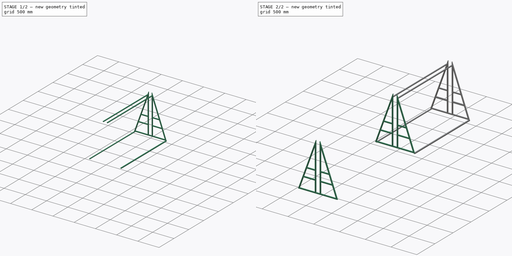
[diagram: build sequence overview — one tinted view per stage of 2, left to right]
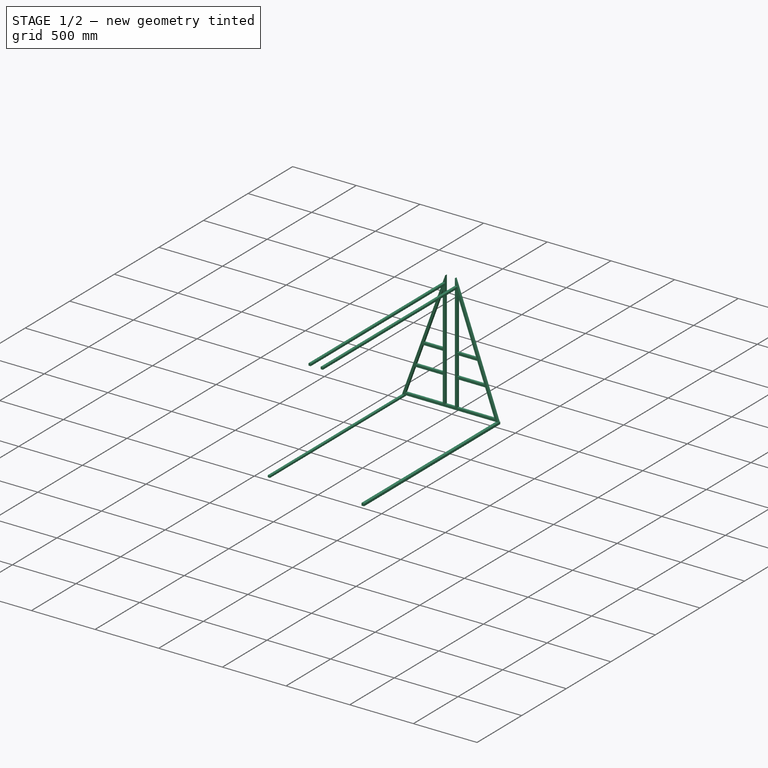
[diagram: stage 1 of 2 — iso view after this stage's code; geometry added in this stage tinted green]
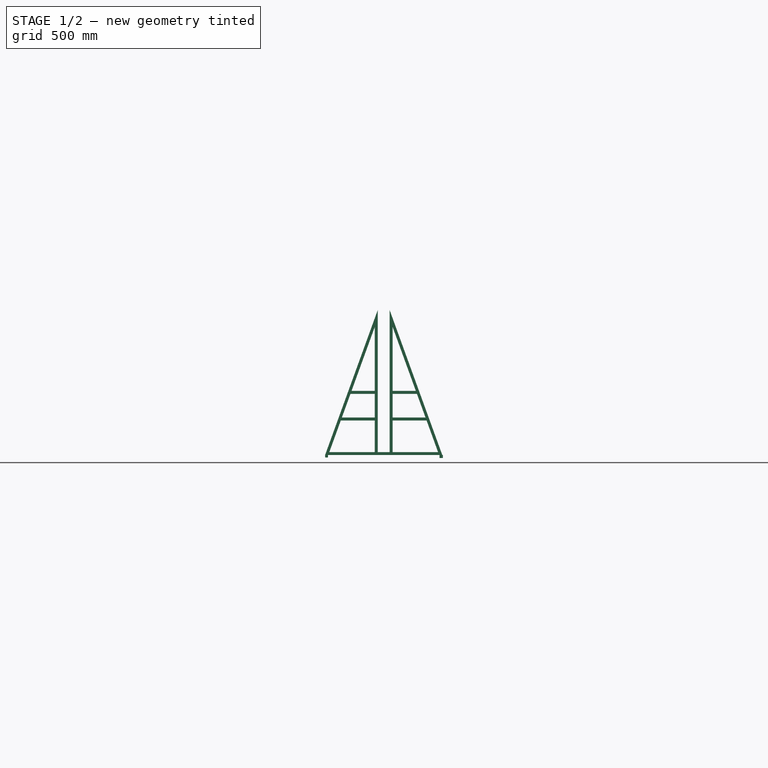
[diagram: stage 1 of 2 — front view after this stage's code; geometry added in this stage tinted green]
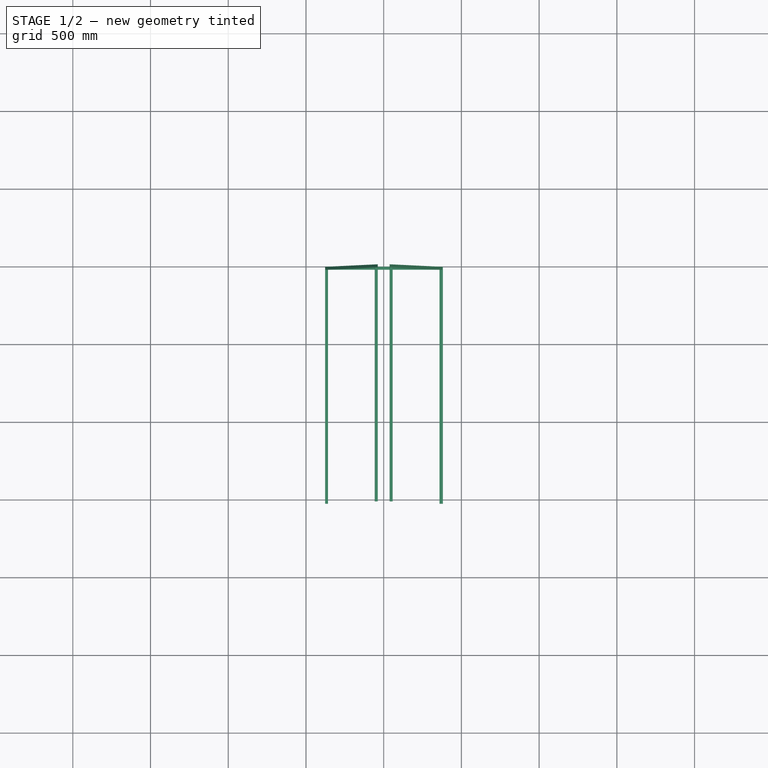
[diagram: stage 1 of 2 — top view after this stage's code; geometry added in this stage tinted green]
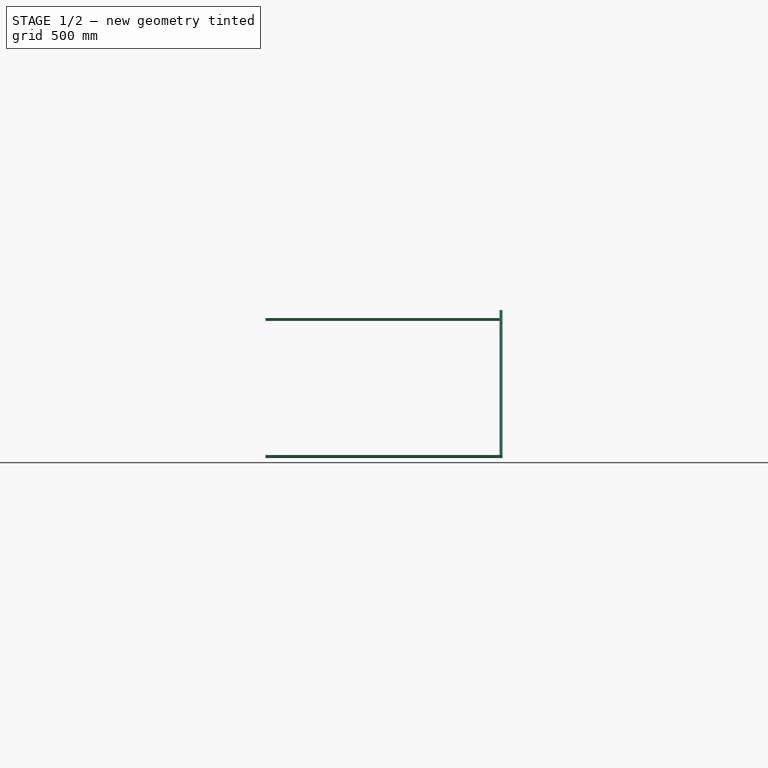
[diagram: stage 1 of 2 — right view after this stage's code; geometry added in this stage tinted green]
FCSTD DOCUMENT  (FreeCAD 0.20R29410 (Git))
Label: rollerrack
License: All rights reserved
LicenseURL: http://en.wikipedia.org/wiki/All_rights_reserved
objects: Sketcher::SketchObject×4, PartDesign::Pad×4, PartDesign::Body×1
note: 13 computed .brp shape members not serialized (recipe doc carries the construction recipe); baked Part::Feature solids carry a one-line shape summary decoded from their .brp

FEATURE [Sketcher::SketchObject] Sketch
  FullyConstrained = true
  MapMode = 5
  Placement = pos=(0,0,0) rot=(1,0,0;1.5708rad)
  Support = -> [XZ_Plane]
  sketch-geometry (31):
    g0: LineSegment StartX=-377.031 StartY=0 StartZ=0 EndX=377.031 EndY=0 EndZ=0
    g1: LineSegment StartX=377.031 StartY=0 StartZ=0 EndX=38.1 EndY=933.45 EndZ=0
    g2: LineSegment StartX=38.1 StartY=933.45 StartZ=0 EndX=38.1 EndY=19.05 EndZ=0
    g3: LineSegment StartX=38.1 StartY=19.05 StartZ=0 EndX=-38.1 EndY=19.05 EndZ=0
    g4: LineSegment StartX=-38.1 StartY=19.05 StartZ=0 EndX=-38.1 EndY=933.45 EndZ=0
    g5: LineSegment StartX=-38.1 StartY=933.45 StartZ=0 EndX=-377.031 EndY=0 EndZ=0
    g6: LineSegment StartX=-276.066 StartY=222.25 StartZ=0 EndX=-57.15 EndY=222.25 EndZ=0
    g7: LineSegment StartX=-57.15 StartY=222.25 StartZ=0 EndX=-57.15 EndY=19.05 EndZ=0
    g8: LineSegment StartX=-57.15 StartY=19.05 StartZ=0 EndX=-349.847 EndY=19.05 EndZ=0
    g9: LineSegment StartX=-349.847 StartY=19.05 StartZ=0 EndX=-276.066 EndY=222.25 EndZ=0
    g10: LineSegment StartX=-269.149 StartY=241.3 StartZ=0 EndX=-213.814 EndY=393.7 EndZ=0
    g11: LineSegment StartX=-213.814 StartY=393.7 StartZ=0 EndX=-57.15 EndY=393.7 EndZ=0
    g12: LineSegment StartX=-57.15 StartY=393.7 StartZ=0 EndX=-57.15 EndY=241.3 EndZ=0
    g13: LineSegment StartX=-57.15 StartY=241.3 StartZ=0 EndX=-269.149 EndY=241.3 EndZ=0
    g14: LineSegment StartX=-206.897 StartY=412.75 StartZ=0 EndX=-57.15 EndY=825.167 EndZ=0
    g15: LineSegment StartX=-57.15 StartY=825.167 StartZ=0 EndX=-57.15 EndY=412.75 EndZ=0
    g16: LineSegment StartX=-57.15 StartY=412.75 StartZ=0 EndX=-206.897 EndY=412.75 EndZ=0
    g17: LineSegment StartX=57.15 StartY=19.05 StartZ=0 EndX=349.847 EndY=19.05 EndZ=0
    g18: LineSegment StartX=349.847 StartY=19.05 StartZ=0 EndX=276.066 EndY=222.25 EndZ=0
    g19: LineSegment StartX=276.066 StartY=222.25 StartZ=0 EndX=57.15 EndY=222.25 EndZ=0
    g20: LineSegment StartX=57.15 StartY=222.25 StartZ=0 EndX=57.15 EndY=19.05 EndZ=0
    g21: LineSegment StartX=57.15 StartY=241.3 StartZ=0 EndX=269.149 EndY=241.3 EndZ=0
    g22: LineSegment StartX=269.149 StartY=241.3 StartZ=0 EndX=213.814 EndY=393.7 EndZ=0
    g23: LineSegment StartX=213.814 StartY=393.7 StartZ=0 EndX=57.15 EndY=393.7 EndZ=0
    g24: LineSegment StartX=57.15 StartY=393.7 StartZ=0 EndX=57.15 EndY=241.3 EndZ=0
    g25: LineSegment StartX=57.15 StartY=412.75 StartZ=0 EndX=206.897 EndY=412.75 EndZ=0
    g26: LineSegment StartX=206.897 StartY=412.75 StartZ=0 EndX=57.15 EndY=825.167 EndZ=0
    g27: LineSegment StartX=57.15 StartY=825.167 StartZ=0 EndX=57.15 EndY=412.75 EndZ=0
    g28: LineSegment StartX=57.15 StartY=825.167 StartZ=0 EndX=57.15 EndY=844.217 EndZ=0
    g29: GeomPoint X=-70.4999 Y=844.217 Z=0
    g30: GeomPoint X=-370.114 Y=19.05 Z=0
  constraints (97):
    c: PointOnObject(g0,g-1)
    c: Coincident(g0,g1)
    c: Coincident(g1,g2)
    c: Vertical(g2)
    c: Coincident(g2,g3)
    c: Horizontal(g3)
    c: Coincident(g3,g4)
    c: Vertical(g4)
    c: Coincident(g4,g5)
    c: Coincident(g5,g0)
    c: Coincident(g6,g7)
    c: Vertical(g7)
    c: Coincident(g7,g8)
    c: Horizontal(g8)
    c: Coincident(g8,g9)
    c: Coincident(g9,g6)
    c: Coincident(g10,g11)
    c: Coincident(g11,g12)
    c: Vertical(g12)
    c: Coincident(g12,g13)
    c: Coincident(g13,g10)
    c: Coincident(g14,g15)
    c: Coincident(g15,g16)
    c: Coincident(g16,g14)
    c: Horizontal(g16)
    c: Horizontal(g17)
    c: Coincident(g17,g18)
    c: Coincident(g18,g19)
    c: Coincident(g19,g20)
    c: Coincident(g20,g17)
    c: Coincident(g21,g22)
    c: Coincident(g22,g23)
    c: Horizontal(g23)
    c: Coincident(g23,g24)
    c: Coincident(g24,g21)
    c: Coincident(g25,g26)
    c: Coincident(g26,g27)
    c: Coincident(g27,g25)
    c: Equal(g5,g1)
    c: Equal(g4,g2)
    c: Parallel(g14,g5)
    c: Parallel(g10,g5)
    c: Parallel(g9,g5)
    c: Parallel(g18,g22)
    c: Parallel(g22,g26)
    c: Parallel(g26,g1)
    c: Vertical(g27)
    c: Vertical(g24)
    c: Vertical(g20)
    c: Distance(g25,g2) = 19.05
    c: DistanceX(g3,g3) = 76.2
    c: Distance(g21,g2) = 19.05
    c: Distance(g19,g2) = 19.05
    c: Horizontal(g19)
    c: Horizontal(g21)
    c: Horizontal(g25)
    c: Distance(g8,g0) = 19.05
    c: Distance(g6,g5) = 19.05
    c: Distance(g10,g5) = 19.05
    c: Distance(g14,g5) = 19.05
    c: Distance(g14,g11) = 19.05
    c: Distance(g10,g6) = 19.05
    c: Horizontal(g11)
    c: Distance(g15,g4) = 19.05
    c: Vertical(g15)
    c: Distance(g11,g4) = 19.05
    c: Horizontal(g6)
    c: Distance(g6,g4) = 19.05
    c: Distance(g3,g0) = 19.05
    c: Distance(g17,g0) = 19.05
    c: Distance(g18,g1) = 19.05
    c: Distance(g21,g1) = 19.05
    c: Distance(g25,g1) = 19.05
    c: Distance(g25,g23) = 19.05
    c: Distance(g21,g19) = 19.05
    c: Horizontal(g13)
    c: DistanceX(g0,g0) = 754.062  'base'
    c: DistanceY(g4,g4) = 914.4
    c: DistanceY(g7,g7) = 203.2
    c: DistanceY(g20,g20) = 203.2
    c: DistanceY(g12,g12) = 152.4
    c: DistanceY(g24,g24) = 152.4
    c: Symmetric(g0,g0,g-2)
    c: Angle(g8,g9) = 1.2225
    c: Angle(g14,g15) = 0.348293
    c: DistanceX(g10,g11) = 156.664
    c: DistanceX(g6,g6) = 218.916
    c: Coincident(g28,g26)
    c: Vertical(g28)
    c: DistanceY(g28,g28) = 19.05
    c: PointOnObject(g29,g5)
    c: Horizontal(g29,g28)
    c: DistanceY(g17,g28) = 825.167
    c: PointOnObject(g30,g5)
    c: Horizontal(g30,g8)
    c: DistanceY(g30,g29) = 825.167
    c: Distance(g29,g30) = 877.878
FEATURE [PartDesign::Pad] Pad
  Direction = (0,-1,-2e-16)
  Length = 19.05
  Length2 = 10
  Placement = pos=(0,0,0) rot=(1,0,0;1.5708rad)
  Profile = -> Sketch
  ReferenceAxis = -> Sketch [N_Axis]
  Refine = true
  Type = 0
FEATURE [Sketcher::SketchObject] Sketch003
  ExternalGeometry = -> [Pad,Sketch]
  FullyConstrained = false
  MapMode = 5
  Placement = pos=(0,0,0) rot=(1,0,0;1.5708rad)
  Support = -> [XZ_Plane]
  sketch-geometry (34):
    g0: LineSegment StartX=-377.031 StartY=0 StartZ=0 EndX=-358.381 EndY=0 EndZ=0
    g1: LineSegment StartX=-358.381 StartY=0 StartZ=0 EndX=-358.381 EndY=-12.5543 EndZ=0
    g2: LineSegment StartX=-361.429 StartY=-15.6023 StartZ=0 EndX=-373.983 EndY=-15.6023 EndZ=0
    g3: LineSegment StartX=-377.031 StartY=-12.5543 StartZ=0 EndX=-377.031 EndY=0 EndZ=0
    g4: ArcOfCircle CenterX=-361.429 CenterY=-12.5543 CenterZ=0 NormalX=0 NormalY=0 NormalZ=1 AngleXU=0 Radius=3.048 StartAngle=4.71239 EndAngle=6.28319
    g5: ArcOfCircle CenterX=-373.983 CenterY=-12.5543 CenterZ=0 NormalX=0 NormalY=0 NormalZ=1 AngleXU=0 Radius=3.048 StartAngle=3.14159 EndAngle=4.71239
    g6: LineSegment StartX=381 StartY=0 StartZ=0 EndX=358.823 EndY=0 EndZ=0
    g7: LineSegment StartX=358.823 StartY=0 StartZ=0 EndX=358.823 EndY=-16.0809 EndZ=0
    g8: LineSegment StartX=361.871 StartY=-19.1289 StartZ=0 EndX=377.952 EndY=-19.1289 EndZ=0
    g9: LineSegment StartX=381 StartY=-16.0809 StartZ=0 EndX=381 EndY=0 EndZ=0
    g10: ArcOfCircle CenterX=361.871 CenterY=-16.0809 CenterZ=0 NormalX=0 NormalY=0 NormalZ=1 AngleXU=0 Radius=3.048 StartAngle=3.14159 EndAngle=4.71239
    g11: ArcOfCircle CenterX=377.952 CenterY=-16.0809 CenterZ=0 NormalX=0 NormalY=0 NormalZ=1 AngleXU=0 Radius=3.048 StartAngle=4.71239 EndAngle=6.28319
    g12: LineSegment StartX=54.2504 StartY=882.129 StartZ=0 EndX=41.2964 EndY=882.129 EndZ=0
    g13: LineSegment StartX=38.2484 StartY=879.081 StartZ=0 EndX=38.2484 EndY=866.127 EndZ=0
    g14: LineSegment StartX=41.2964 StartY=863.079 StartZ=0 EndX=54.2504 EndY=863.079 EndZ=0
    g15: LineSegment StartX=57.2984 StartY=866.127 StartZ=0 EndX=57.2984 EndY=879.081 EndZ=0
    g16: ArcOfCircle CenterX=54.2504 CenterY=879.081 CenterZ=0 NormalX=0 NormalY=0 NormalZ=1 AngleXU=0 Radius=3.048 StartAngle=-1.07e-14 EndAngle=1.5708
    g17: ArcOfCircle CenterX=41.2964 CenterY=879.081 CenterZ=0 NormalX=0 NormalY=0 NormalZ=1 AngleXU=0 Radius=3.048 StartAngle=1.5708 EndAngle=3.14159
    g18: GeomPoint X=38.2484 Y=882.129 Z=0
    g19: ArcOfCircle CenterX=41.2964 CenterY=866.127 CenterZ=0 NormalX=0 NormalY=0 NormalZ=1 AngleXU=0 Radius=3.048 StartAngle=3.14159 EndAngle=4.71239
    g20: GeomPoint X=38.2484 Y=863.079 Z=0
    g21: ArcOfCircle CenterX=54.2504 CenterY=866.127 CenterZ=0 NormalX=0 NormalY=0 NormalZ=1 AngleXU=0 Radius=3.048 StartAngle=4.71239 EndAngle=6.28319
    g22: GeomPoint X=57.2984 Y=863.079 Z=0
    g23: LineSegment StartX=-54.2504 StartY=882.129 StartZ=0 EndX=-41.2964 EndY=882.129 EndZ=0
    g24: LineSegment StartX=-38.2484 StartY=879.081 StartZ=0 EndX=-38.2484 EndY=866.127 EndZ=0
    g25: LineSegment StartX=-41.2964 StartY=863.079 StartZ=0 EndX=-54.2504 EndY=863.079 EndZ=0
    g26: LineSegment StartX=-57.2984 StartY=866.127 StartZ=0 EndX=-57.2984 EndY=879.081 EndZ=0
    g27: ArcOfCircle CenterX=-54.2504 CenterY=879.081 CenterZ=0 NormalX=0 NormalY=0 NormalZ=1 AngleXU=0 Radius=3.048 StartAngle=1.5708 EndAngle=3.14159
    g28: ArcOfCircle CenterX=-41.2964 CenterY=879.081 CenterZ=0 NormalX=0 NormalY=0 NormalZ=1 AngleXU=0 Radius=3.048 StartAngle=0 EndAngle=1.5708
    g29: GeomPoint X=-38.2484 Y=882.129 Z=0
    g30: ArcOfCircle CenterX=-41.2964 CenterY=866.127 CenterZ=0 NormalX=0 NormalY=0 NormalZ=1 AngleXU=0 Radius=3.048 StartAngle=4.71239 EndAngle=6.28319
    g31: GeomPoint X=-38.2484 Y=863.079 Z=0
    g32: ArcOfCircle CenterX=-54.2504 CenterY=866.127 CenterZ=0 NormalX=0 NormalY=0 NormalZ=1 AngleXU=0 Radius=3.048 StartAngle=3.14159 EndAngle=4.71239
    g33: GeomPoint X=-57.2984 Y=863.079 Z=0
  constraints (73):
    c: Coincident(g0,g1)
    c: Coincident(g3,g0)
    c: Horizontal(g0)
    c: Horizontal(g2)
    c: Vertical(g1)
    c: Vertical(g3)
    c: Equal(g1,g2)
    c: Coincident(g0,g-3)
    c: Tangent(g2,g4) = 1.5708
    c: Tangent(g1,g4) = 1.5708
    c: Tangent(g2,g5) = 1.5708
    c: Tangent(g3,g5) = 1.5708
    c: Radius(g4) = 3.048
    c: Radius(g5) = 3.048
    c: Coincident(g6,g7)
    c: Coincident(g9,g6)
    c: Horizontal(g6)
    c: Horizontal(g8)
    c: Vertical(g7)
    c: Vertical(g9)
    c: Equal(g7,g8)
    c: Tangent(g8,g10) = -1.5708
    c: Tangent(g7,g10) = -1.5708
    c: Tangent(g8,g11) = -1.5708
    c: Tangent(g9,g11) = -1.5708
    c: Radius(g10) = 3.048
    c: Radius(g11) = 3.048
    c: Horizontal(g12)
    c: Horizontal(g14)
    c: Vertical(g13)
    c: Vertical(g15)
    c: Tangent(g15,g16) = -1.5708
    c: Tangent(g12,g16) = -1.5708
    c: PointOnObject(g18,g12)
    c: PointOnObject(g18,g13)
    c: Tangent(g12,g17) = -1.5708
    c: Tangent(g13,g17) = -1.5708
    c: PointOnObject(g20,g13)
    c: PointOnObject(g20,g14)
    c: Tangent(g13,g19) = -1.5708
    c: Tangent(g14,g19) = -1.5708
    c: PointOnObject(g22,g15)
    c: PointOnObject(g22,g14)
    c: Tangent(g15,g21) = -1.5708
    c: Tangent(g14,g21) = -1.5708
    c: Equal(g21,g16)
    c: Equal(g21,g17)
    c: Equal(g21,g19)
    c: Radius(g21) = 3.048
    c: Distance(g18,g20) = 19.05
    c: Horizontal(g23)
    c: Horizontal(g25)
    c: Vertical(g24)
    c: Vertical(g26)
    c: Tangent(g26,g27) = 1.5708
    c: Tangent(g23,g27) = 1.5708
    c: PointOnObject(g29,g23)
    c: PointOnObject(g29,g24)
    c: Tangent(g23,g28) = 1.5708
    c: Tangent(g24,g28) = 1.5708
    c: PointOnObject(g31,g24)
    c: PointOnObject(g31,g25)
    c: Tangent(g24,g30) = 1.5708
    c: Tangent(g25,g30) = 1.5708
    c: PointOnObject(g33,g26)
    c: PointOnObject(g33,g25)
    c: Tangent(g26,g32) = 1.5708
    c: Tangent(g25,g32) = 1.5708
    c: Equal(g32,g27)
    c: Equal(g32,g28)
    c: Equal(g32,g30)
    c: Radius(g32) = 3.048
    c: Distance(g29,g31) = 19.05
FEATURE [PartDesign::Pad] Pad003
  BaseFeature = -> Pad
  Direction = (0,-1,-2e-16)
  Length = 1524
  Length2 = 10
  Placement = pos=(0,0,0) rot=(1,0,0;1.5708rad)
  Profile = -> Sketch003
  ReferenceAxis = -> Sketch003 [N_Axis]
  Refine = true
  Type = 0
FEATURE [PartDesign::Body] Body
  Group = -> [Sketch,Pad,Sketch003,Pad003]
  Origin = -> Origin
  Tip = -> Pad003
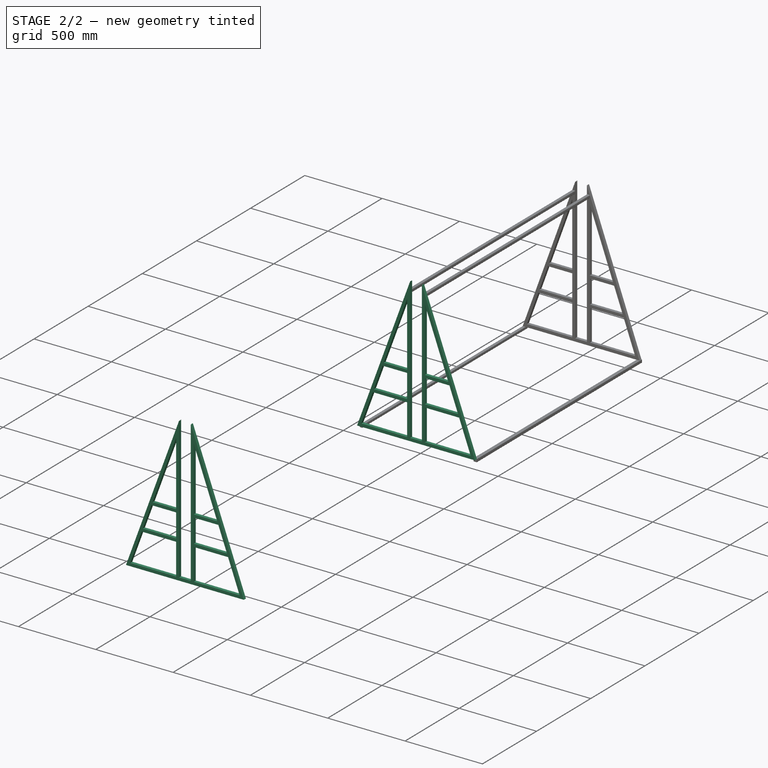
[diagram: stage 2 of 2 — iso view after this stage's code; geometry added in this stage tinted green]
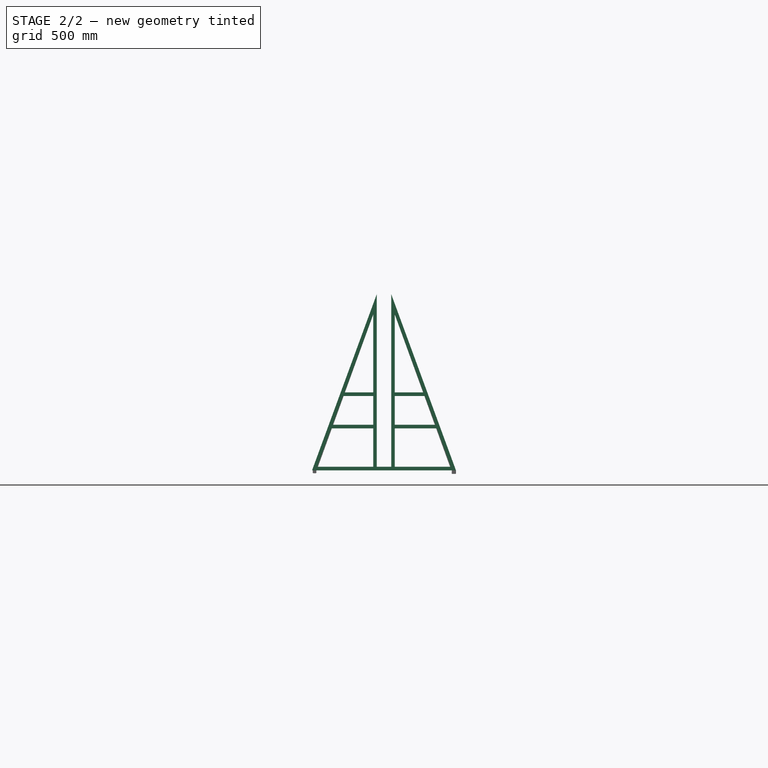
[diagram: stage 2 of 2 — front view after this stage's code; geometry added in this stage tinted green]
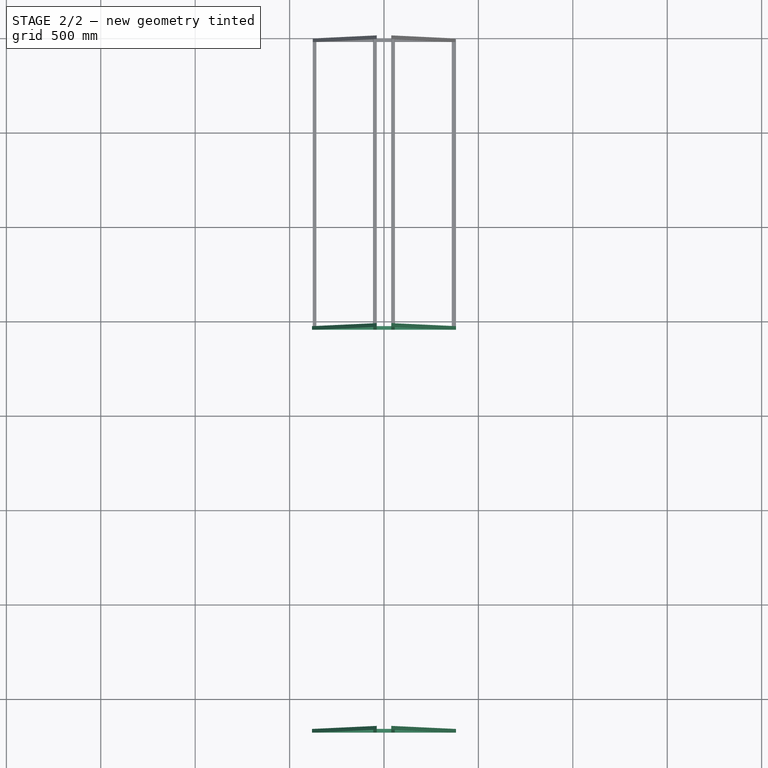
[diagram: stage 2 of 2 — top view after this stage's code; geometry added in this stage tinted green]
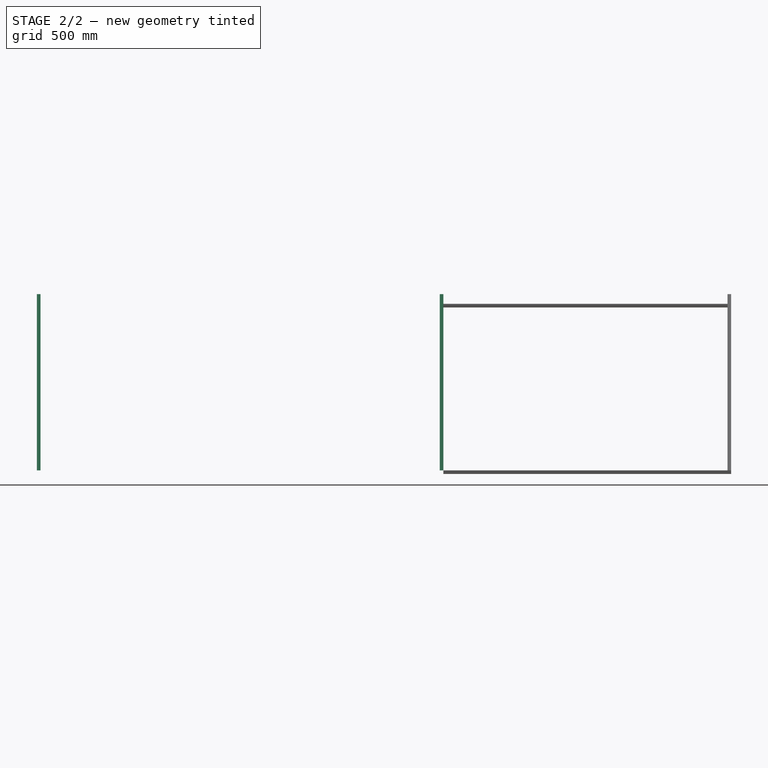
[diagram: stage 2 of 2 — right view after this stage's code; geometry added in this stage tinted green]
FEATURE [Sketcher::SketchObject] Sketch001
  AttachmentOffset = pos=(0,0,1524) rot=(0,0,1;0rad)
  FullyConstrained = true
  MapMode = 5
  Placement = pos=(0,-1524,-3.384e-13) rot=(1,0,0;1.5708rad)
  Support = -> [XZ_Plane001]
  sketch-geometry (28):
    g0: LineSegment StartX=-381 StartY=0 StartZ=0 EndX=381 EndY=0 EndZ=0
    g1: LineSegment StartX=381 StartY=0 StartZ=0 EndX=38.1 EndY=933.45 EndZ=0
    g2: LineSegment StartX=38.1 StartY=933.45 StartZ=0 EndX=38.1 EndY=19.05 EndZ=0
    g3: LineSegment StartX=38.1 StartY=19.05 StartZ=0 EndX=-38.1 EndY=19.05 EndZ=0
    g4: LineSegment StartX=-38.1 StartY=19.05 StartZ=0 EndX=-38.1 EndY=933.45 EndZ=0
    g5: LineSegment StartX=-38.1 StartY=933.45 StartZ=0 EndX=-381 EndY=0 EndZ=0
    g6: LineSegment StartX=-279.062 StartY=222.25 StartZ=0 EndX=-57.15 EndY=222.25 EndZ=0
    g7: LineSegment StartX=-57.15 StartY=222.25 StartZ=0 EndX=-57.15 EndY=19.05 EndZ=0
    g8: LineSegment StartX=-57.15 StartY=19.05 StartZ=0 EndX=-353.707 EndY=19.05 EndZ=0
    g9: LineSegment StartX=-353.707 StartY=19.05 StartZ=0 EndX=-279.062 EndY=222.25 EndZ=0
    g10: LineSegment StartX=-272.065 StartY=241.3 StartZ=0 EndX=-216.081 EndY=393.7 EndZ=0
    g11: LineSegment StartX=-216.081 StartY=393.7 StartZ=0 EndX=-57.15 EndY=393.7 EndZ=0
    g12: LineSegment StartX=-57.15 StartY=393.7 StartZ=0 EndX=-57.15 EndY=241.3 EndZ=0
    g13: LineSegment StartX=-57.15 StartY=241.3 StartZ=0 EndX=-272.065 EndY=241.3 EndZ=0
    g14: LineSegment StartX=-209.083 StartY=412.75 StartZ=0 EndX=-57.15 EndY=826.345 EndZ=0
    g15: LineSegment StartX=-57.15 StartY=826.345 StartZ=0 EndX=-57.15 EndY=412.75 EndZ=0
    g16: LineSegment StartX=-57.15 StartY=412.75 StartZ=0 EndX=-209.083 EndY=412.75 EndZ=0
    g17: LineSegment StartX=57.15 StartY=19.05 StartZ=0 EndX=353.707 EndY=19.05 EndZ=0
    g18: LineSegment StartX=353.707 StartY=19.05 StartZ=0 EndX=279.062 EndY=222.25 EndZ=0
    g19: LineSegment StartX=279.062 StartY=222.25 StartZ=0 EndX=57.15 EndY=222.25 EndZ=0
    g20: LineSegment StartX=57.15 StartY=222.25 StartZ=0 EndX=57.15 EndY=19.05 EndZ=0
    g21: LineSegment StartX=57.15 StartY=241.3 StartZ=0 EndX=272.065 EndY=241.3 EndZ=0
    g22: LineSegment StartX=272.065 StartY=241.3 StartZ=0 EndX=216.081 EndY=393.7 EndZ=0
    g23: LineSegment StartX=216.081 StartY=393.7 StartZ=0 EndX=57.15 EndY=393.7 EndZ=0
    g24: LineSegment StartX=57.15 StartY=393.7 StartZ=0 EndX=57.15 EndY=241.3 EndZ=0
    g25: LineSegment StartX=57.15 StartY=412.75 StartZ=0 EndX=209.083 EndY=412.75 EndZ=0
    g26: LineSegment StartX=209.083 StartY=412.75 StartZ=0 EndX=57.15 EndY=826.345 EndZ=0
    g27: LineSegment StartX=57.15 StartY=826.345 StartZ=0 EndX=57.15 EndY=412.75 EndZ=0
  constraints (83):
    c: PointOnObject(g0,g-1)
    c: Coincident(g0,g1)
    c: Coincident(g1,g2)
    c: Vertical(g2)
    c: Coincident(g2,g3)
    c: Horizontal(g3)
    c: Coincident(g3,g4)
    c: Vertical(g4)
    c: Coincident(g4,g5)
    c: Coincident(g5,g0)
    c: Coincident(g6,g7)
    c: Vertical(g7)
    c: Coincident(g7,g8)
    c: Horizontal(g8)
    c: Coincident(g8,g9)
    c: Coincident(g9,g6)
    c: Coincident(g10,g11)
    c: Coincident(g11,g12)
    c: Vertical(g12)
    c: Coincident(g12,g13)
    c: Coincident(g13,g10)
    c: Coincident(g14,g15)
    c: Coincident(g15,g16)
    c: Coincident(g16,g14)
    c: Horizontal(g16)
    c: Horizontal(g17)
    c: Coincident(g17,g18)
    c: Coincident(g18,g19)
    c: Coincident(g19,g20)
    c: Coincident(g20,g17)
    c: Coincident(g21,g22)
    c: Coincident(g22,g23)
    c: Horizontal(g23)
    c: Coincident(g23,g24)
    c: Coincident(g24,g21)
    c: Coincident(g25,g26)
    c: Coincident(g26,g27)
    c: Coincident(g27,g25)
    c: Equal(g5,g1)
    c: Equal(g4,g2)
    c: Parallel(g14,g5)
    c: Parallel(g10,g5)
    c: Parallel(g9,g5)
    c: Parallel(g18,g22)
    c: Parallel(g22,g26)
    c: Parallel(g26,g1)
    c: Vertical(g27)
    c: Vertical(g24)
    c: Vertical(g20)
    c: Distance(g25,g2) = 19.05
    c: DistanceX(g3,g3) = 76.2
    c: Distance(g21,g2) = 19.05
    c: Distance(g19,g2) = 19.05
    c: Horizontal(g19)
    c: Horizontal(g21)
    c: Horizontal(g25)
    c: Distance(g8,g0) = 19.05
    c: Distance(g6,g5) = 19.05
    c: Distance(g10,g5) = 19.05
    c: Distance(g14,g5) = 19.05
    c: Distance(g14,g11) = 19.05
    c: Distance(g10,g6) = 19.05
    c: Horizontal(g11)
    c: Distance(g15,g4) = 19.05
    c: Vertical(g15)
    c: Distance(g11,g4) = 19.05
    c: Horizontal(g6)
    c: Distance(g6,g4) = 19.05
    c: Distance(g3,g0) = 19.05
    c: Distance(g17,g0) = 19.05
    c: Distance(g18,g1) = 19.05
    c: Distance(g21,g1) = 19.05
    c: Distance(g25,g1) = 19.05
    c: Distance(g25,g23) = 19.05
    c: Distance(g21,g19) = 19.05
    c: Horizontal(g13)
    c: DistanceX(g0,g0) = 762
    c: DistanceY(g4,g4) = 914.4
    c: DistanceY(g7,g7) = 203.2
    c: DistanceY(g20,g20) = 203.2
    c: DistanceY(g12,g12) = 152.4
    c: DistanceY(g24,g24) = 152.4
    c: Symmetric(g0,g0,g-2)
FEATURE [PartDesign::Pad] Pad001
  Direction = (0,-1,-2e-16)
  Length = 19.05
  Length2 = 10
  Placement = pos=(0,0,0) rot=(1,0,0;1.5708rad)
  Profile = -> Sketch001
  ReferenceAxis = -> Sketch001 [N_Axis]
  Refine = true
  Type = 0
FEATURE [Sketcher::SketchObject] Sketch002
  AttachmentOffset = pos=(0,0,3657.6) rot=(0,0,1;0rad)
  FullyConstrained = true
  MapMode = 5
  Placement = pos=(0,-3657.6,-8.122e-13) rot=(1,0,0;1.5708rad)
  Support = -> [XZ_Plane002]
  expr: .AttachmentOffset.Base.z = 72 * 2in
  sketch-geometry (28):
    g0: LineSegment StartX=-381 StartY=0 StartZ=0 EndX=381 EndY=0 EndZ=0
    g1: LineSegment StartX=381 StartY=0 StartZ=0 EndX=38.1 EndY=933.45 EndZ=0
    g2: LineSegment StartX=38.1 StartY=933.45 StartZ=0 EndX=38.1 EndY=19.05 EndZ=0
    g3: LineSegment StartX=38.1 StartY=19.05 StartZ=0 EndX=-38.1 EndY=19.05 EndZ=0
    g4: LineSegment StartX=-38.1 StartY=19.05 StartZ=0 EndX=-38.1 EndY=933.45 EndZ=0
    g5: LineSegment StartX=-38.1 StartY=933.45 StartZ=0 EndX=-381 EndY=0 EndZ=0
    g6: LineSegment StartX=-279.062 StartY=222.25 StartZ=0 EndX=-57.15 EndY=222.25 EndZ=0
    g7: LineSegment StartX=-57.15 StartY=222.25 StartZ=0 EndX=-57.15 EndY=19.05 EndZ=0
    g8: LineSegment StartX=-57.15 StartY=19.05 StartZ=0 EndX=-353.707 EndY=19.05 EndZ=0
    g9: LineSegment StartX=-353.707 StartY=19.05 StartZ=0 EndX=-279.062 EndY=222.25 EndZ=0
    g10: LineSegment StartX=-272.065 StartY=241.3 StartZ=0 EndX=-216.081 EndY=393.7 EndZ=0
    g11: LineSegment StartX=-216.081 StartY=393.7 StartZ=0 EndX=-57.15 EndY=393.7 EndZ=0
    g12: LineSegment StartX=-57.15 StartY=393.7 StartZ=0 EndX=-57.15 EndY=241.3 EndZ=0
    g13: LineSegment StartX=-57.15 StartY=241.3 StartZ=0 EndX=-272.065 EndY=241.3 EndZ=0
    g14: LineSegment StartX=-209.083 StartY=412.75 StartZ=0 EndX=-57.15 EndY=826.345 EndZ=0
    g15: LineSegment StartX=-57.15 StartY=826.345 StartZ=0 EndX=-57.15 EndY=412.75 EndZ=0
    g16: LineSegment StartX=-57.15 StartY=412.75 StartZ=0 EndX=-209.083 EndY=412.75 EndZ=0
    g17: LineSegment StartX=57.15 StartY=19.05 StartZ=0 EndX=353.707 EndY=19.05 EndZ=0
    g18: LineSegment StartX=353.707 StartY=19.05 StartZ=0 EndX=279.062 EndY=222.25 EndZ=0
    g19: LineSegment StartX=279.062 StartY=222.25 StartZ=0 EndX=57.15 EndY=222.25 EndZ=0
    g20: LineSegment StartX=57.15 StartY=222.25 StartZ=0 EndX=57.15 EndY=19.05 EndZ=0
    g21: LineSegment StartX=57.15 StartY=241.3 StartZ=0 EndX=272.065 EndY=241.3 EndZ=0
    g22: LineSegment StartX=272.065 StartY=241.3 StartZ=0 EndX=216.081 EndY=393.7 EndZ=0
    g23: LineSegment StartX=216.081 StartY=393.7 StartZ=0 EndX=57.15 EndY=393.7 EndZ=0
    g24: LineSegment StartX=57.15 StartY=393.7 StartZ=0 EndX=57.15 EndY=241.3 EndZ=0
    g25: LineSegment StartX=57.15 StartY=412.75 StartZ=0 EndX=209.083 EndY=412.75 EndZ=0
    g26: LineSegment StartX=209.083 StartY=412.75 StartZ=0 EndX=57.15 EndY=826.345 EndZ=0
    g27: LineSegment StartX=57.15 StartY=826.345 StartZ=0 EndX=57.15 EndY=412.75 EndZ=0
  constraints (83):
    c: PointOnObject(g0,g-1)
    c: Coincident(g0,g1)
    c: Coincident(g1,g2)
    c: Vertical(g2)
    c: Coincident(g2,g3)
    c: Horizontal(g3)
    c: Coincident(g3,g4)
    c: Vertical(g4)
    c: Coincident(g4,g5)
    c: Coincident(g5,g0)
    c: Coincident(g6,g7)
    c: Vertical(g7)
    c: Coincident(g7,g8)
    c: Horizontal(g8)
    c: Coincident(g8,g9)
    c: Coincident(g9,g6)
    c: Coincident(g10,g11)
    c: Coincident(g11,g12)
    c: Vertical(g12)
    c: Coincident(g12,g13)
    c: Coincident(g13,g10)
    c: Coincident(g14,g15)
    c: Coincident(g15,g16)
    c: Coincident(g16,g14)
    c: Horizontal(g16)
    c: Horizontal(g17)
    c: Coincident(g17,g18)
    c: Coincident(g18,g19)
    c: Coincident(g19,g20)
    c: Coincident(g20,g17)
    c: Coincident(g21,g22)
    c: Coincident(g22,g23)
    c: Horizontal(g23)
    c: Coincident(g23,g24)
    c: Coincident(g24,g21)
    c: Coincident(g25,g26)
    c: Coincident(g26,g27)
    c: Coincident(g27,g25)
    c: Equal(g5,g1)
    c: Equal(g4,g2)
    c: Parallel(g14,g5)
    c: Parallel(g10,g5)
    c: Parallel(g9,g5)
    c: Parallel(g18,g22)
    c: Parallel(g22,g26)
    c: Parallel(g26,g1)
    c: Vertical(g27)
    c: Vertical(g24)
    c: Vertical(g20)
    c: Distance(g25,g2) = 19.05
    c: DistanceX(g3,g3) = 76.2
    c: Distance(g21,g2) = 19.05
    c: Distance(g19,g2) = 19.05
    c: Horizontal(g19)
    c: Horizontal(g21)
    c: Horizontal(g25)
    c: Distance(g8,g0) = 19.05
    c: Distance(g6,g5) = 19.05
    c: Distance(g10,g5) = 19.05
    c: Distance(g14,g5) = 19.05
    c: Distance(g14,g11) = 19.05
    c: Distance(g10,g6) = 19.05
    c: Horizontal(g11)
    c: Distance(g15,g4) = 19.05
    c: Vertical(g15)
    c: Distance(g11,g4) = 19.05
    c: Horizontal(g6)
    c: Distance(g6,g4) = 19.05
    c: Distance(g3,g0) = 19.05
    c: Distance(g17,g0) = 19.05
    c: Distance(g18,g1) = 19.05
    c: Distance(g21,g1) = 19.05
    c: Distance(g25,g1) = 19.05
    c: Distance(g25,g23) = 19.05
    c: Distance(g21,g19) = 19.05
    c: Horizontal(g13)
    c: DistanceX(g0,g0) = 762
    c: DistanceY(g4,g4) = 914.4
    c: DistanceY(g7,g7) = 203.2
    c: DistanceY(g20,g20) = 203.2
    c: DistanceY(g12,g12) = 152.4
    c: DistanceY(g24,g24) = 152.4
    c: Symmetric(g0,g0,g-2)
FEATURE [PartDesign::Pad] Pad002
  Direction = (0,-1,-2e-16)
  Length = 19.05
  Length2 = 10
  Placement = pos=(0,0,0) rot=(1,0,0;1.5708rad)
  Profile = -> Sketch002
  ReferenceAxis = -> Sketch002 [N_Axis]
  Refine = true
  Type = 0
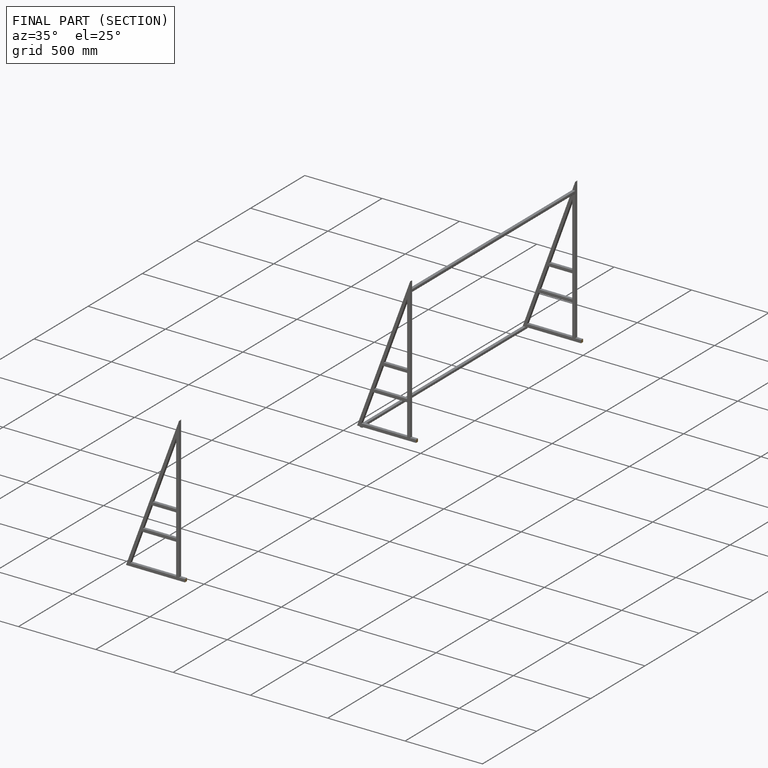
[diagram: finished part — half-section view (interior)]
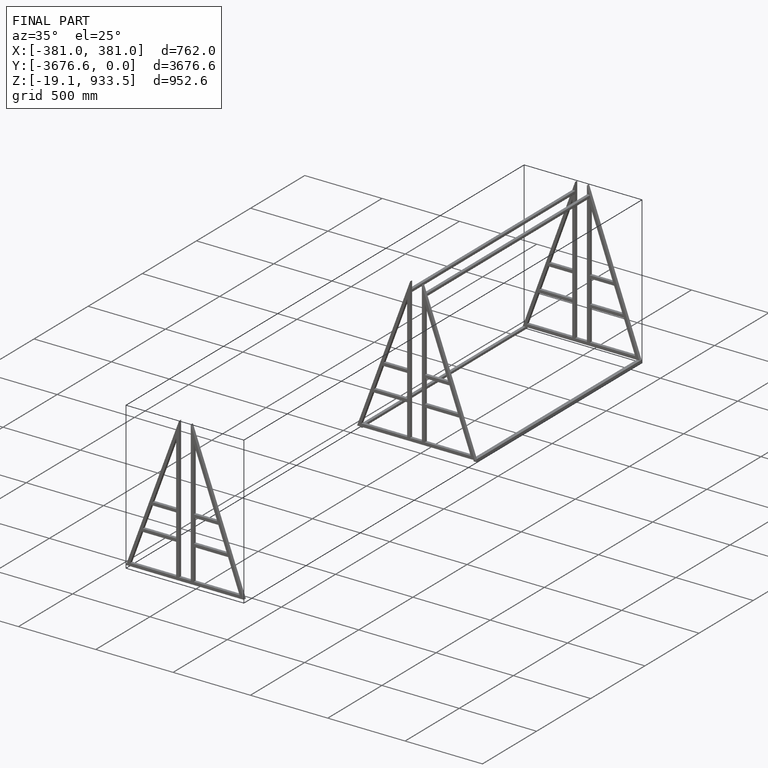
[diagram: finished part — iso view with bounding-box wireframe]
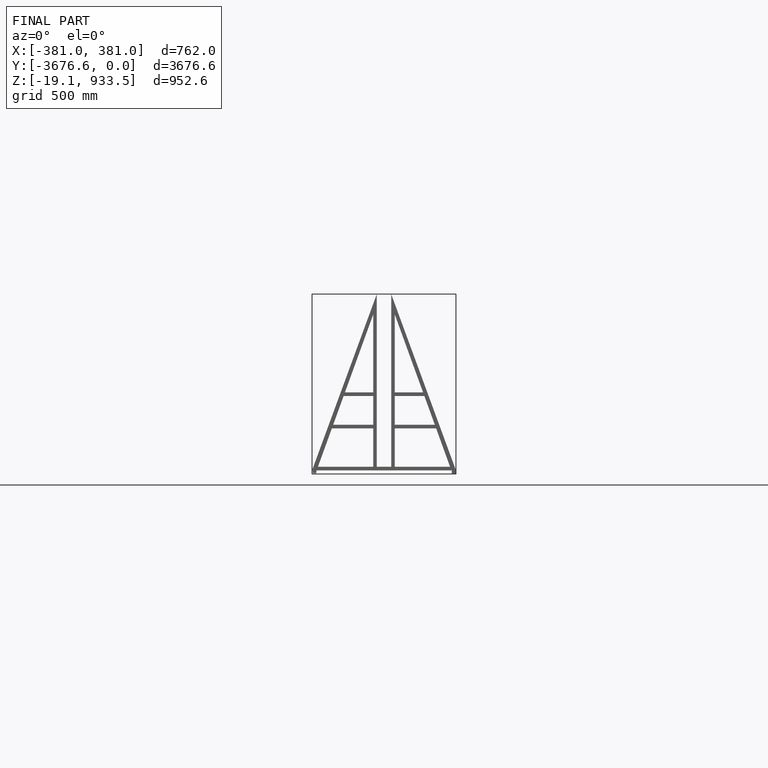
[diagram: finished part — front view with bounding-box wireframe]
